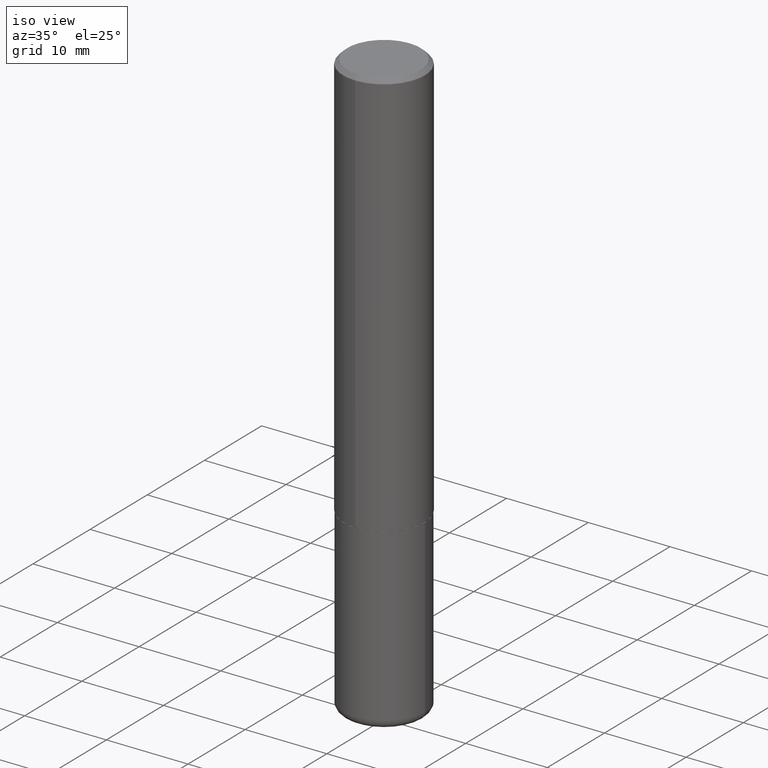
[diagram: clean part render]
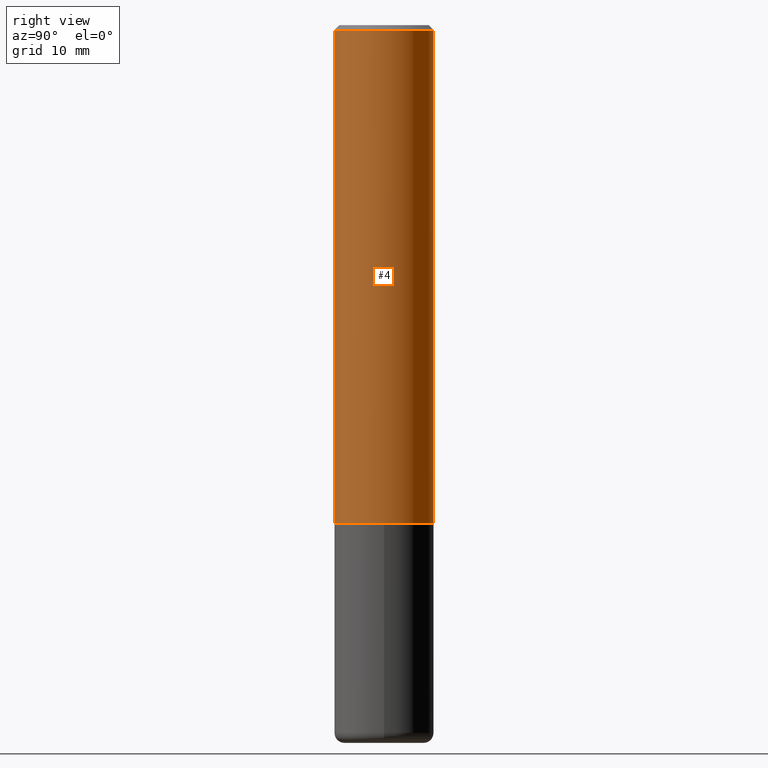
[diagram: tour spotlight — one face highlighted and labeled with its STEP entity id]
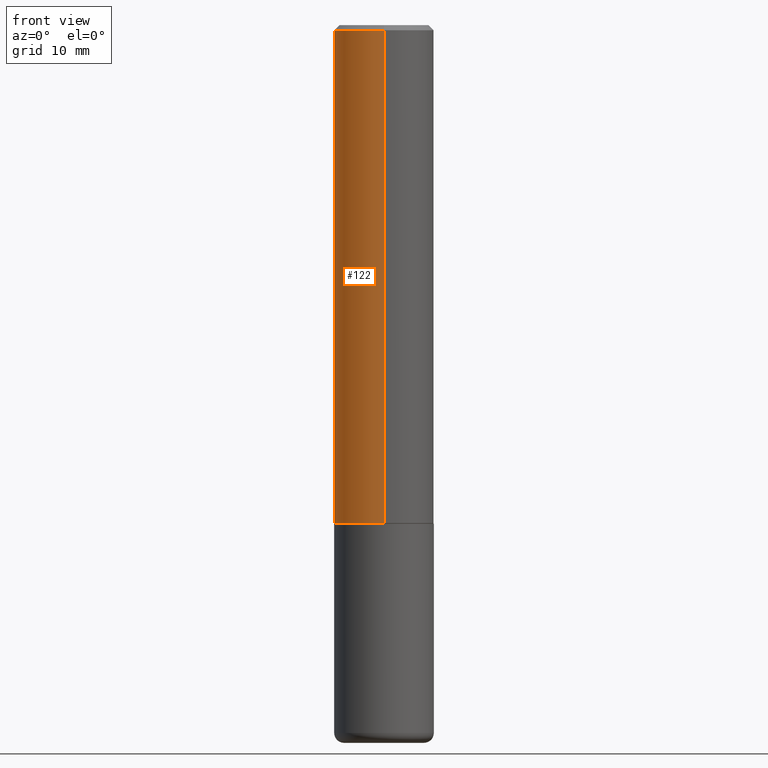
[diagram: tour spotlight — one face highlighted and labeled with its STEP entity id]
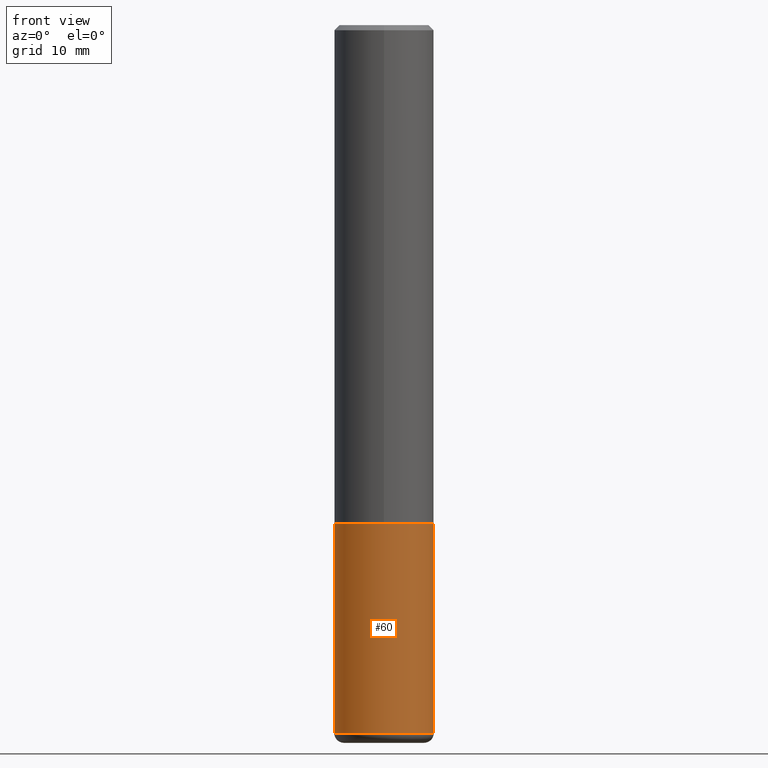
[diagram: tour spotlight — one face highlighted and labeled with its STEP entity id]
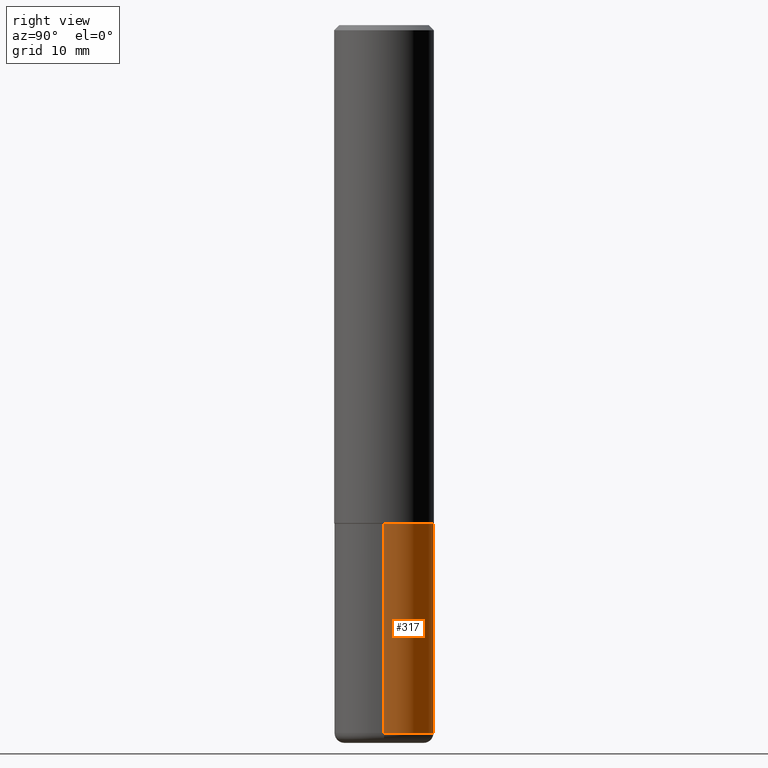
[diagram: tour spotlight — one face highlighted and labeled with its STEP entity id]
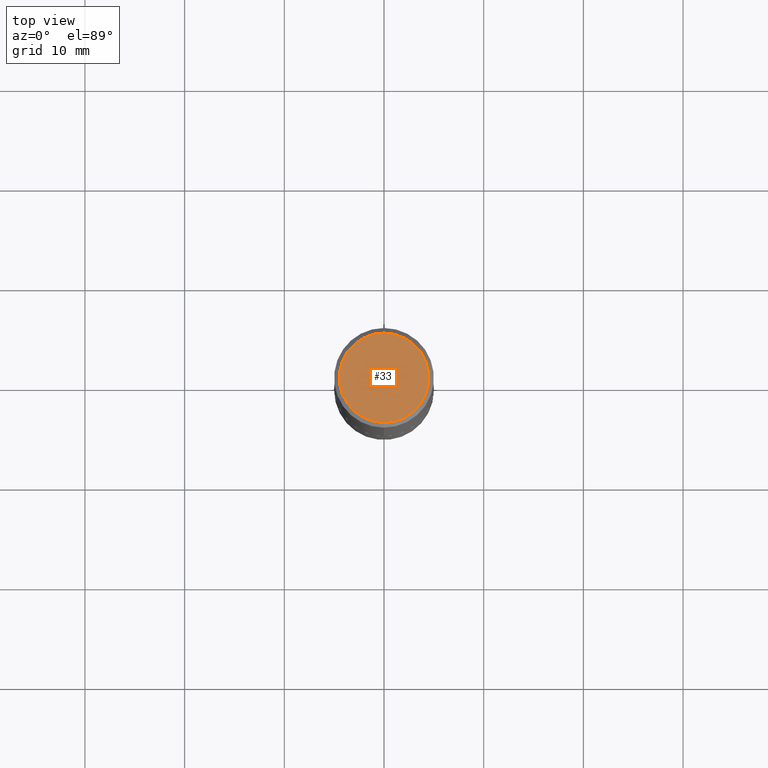
[diagram: tour spotlight — one face highlighted and labeled with its STEP entity id]
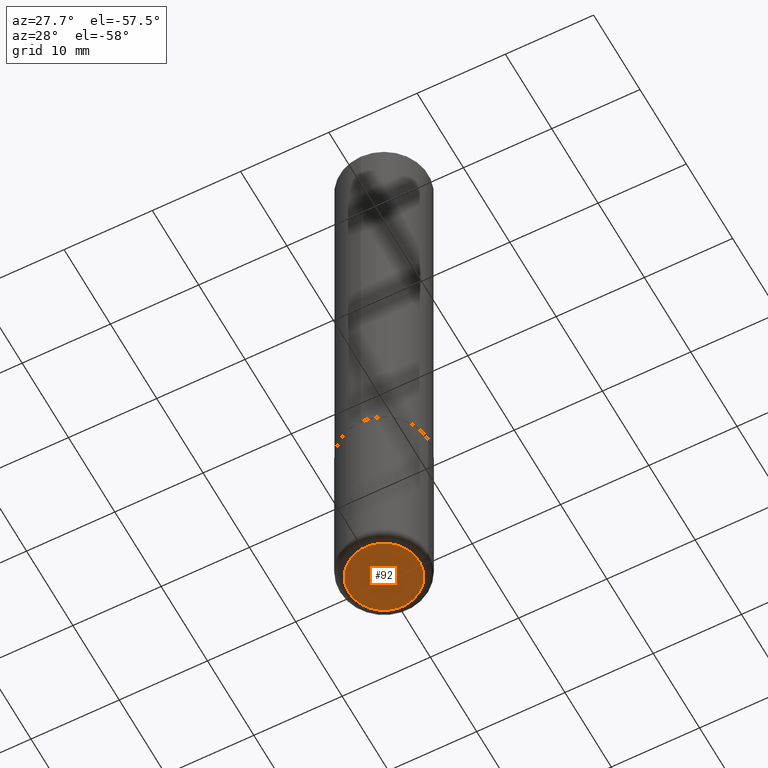
[diagram: tour spotlight — one face highlighted and labeled with its STEP entity id]
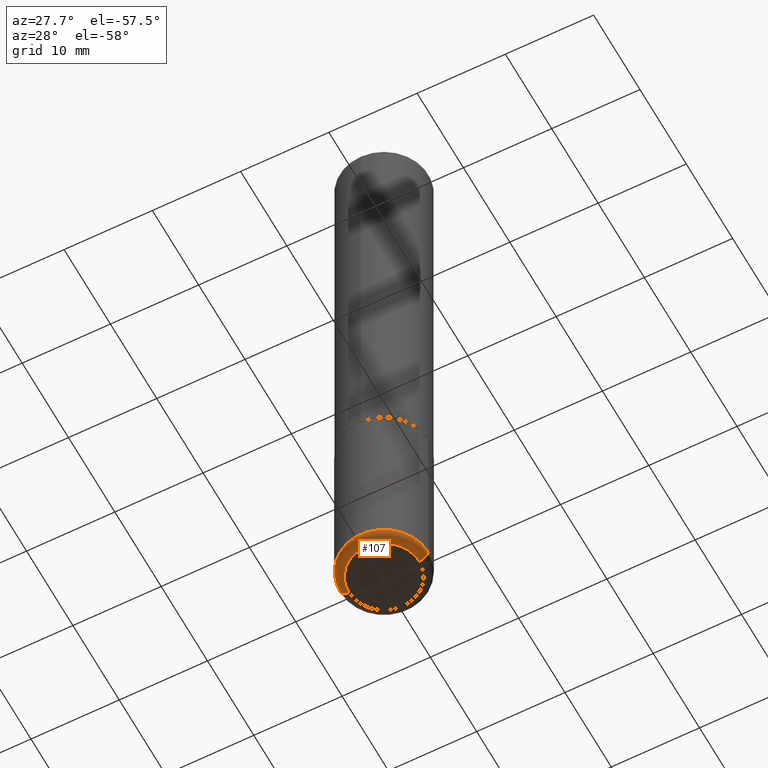
[diagram: tour spotlight — one face highlighted and labeled with its STEP entity id]
A machine part: a face-by-face anatomy tour. The part has 14 B-rep faces; the first image is the clean iso view, then the 7 largest visible faces are spotlighted one at a time (largest first), each with its STEP entity span.

Face 1 — right view, entity #4. In plain terms, the highlighted cylindrical surface (partial cylindrical patch) has radius 5 mm, axis along (-0, 0, 1).
Definition (entity closure, byte-faithful):
#3 = CARTESIAN_POINT ( 'NONE',  ( 1.374596203102542003E-15, 0.1968499999999999417, -0.02000000000000072900 ) ) ;
#4 = ADVANCED_FACE ( 'NONE', ( #323 ), #302, .T. ) ;
#11 = DIRECTION ( 'NONE',  ( -2.445768211810956331E-29, 3.491052572945861944E-15, 1.000000000000000000 ) ) ;
#14 = VERTEX_POINT ( 'NONE', #326 ) ;
#27 = CIRCLE ( 'NONE', #363, 0.1968500000000002470 ) ;
#28 = DIRECTION ( 'NONE',  ( -2.445768211810956331E-29, 3.491052572945861944E-15, 1.000000000000000000 ) ) ;
#30 = VERTEX_POINT ( 'NONE', #3 ) ;
#57 = LINE ( 'NONE', #193, #389 ) ;
#66 = EDGE_CURVE ( 'NONE', #14, #131, #27, .T. ) ;
#93 = CARTESIAN_POINT ( 'NONE',  ( 1.398703375343782834E-15, 0.1968499999999934191, -1.967500000000000471 ) ) ;
#105 = ORIENTED_EDGE ( 'NONE', *, *, #206, .F. ) ;
#110 = AXIS2_PLACEMENT_3D ( 'NONE', #306, #28, #260 ) ;
#118 = EDGE_CURVE ( 'NONE', #14, #154, #57, .T. ) ;
#129 = ORIENTED_EDGE ( 'NONE', *, *, #354, .T. ) ;
#131 = VERTEX_POINT ( 'NONE', #93 ) ;
#154 = VERTEX_POINT ( 'NONE', #190 ) ;
#166 = DIRECTION ( 'NONE',  ( -2.445768211810956331E-29, 3.491052572945861944E-15, 1.000000000000000000 ) ) ;
#175 = DIRECTION ( 'NONE',  ( -2.445768211810956331E-29, 3.491052572945861549E-15, 1.000000000000000000 ) ) ;
#188 = ORIENTED_EDGE ( 'NONE', *, *, #118, .F. ) ;
#190 = CARTESIAN_POINT ( 'NONE',  ( -1.350489030861325429E-15, -0.1968500000000000805, -0.01999999999999935510 ) ) ;
#193 = CARTESIAN_POINT ( 'NONE',  ( -1.374596203102542200E-15, -0.1968500000000001082, 6.872136989843933563E-16 ) ) ;
#196 = AXIS2_PLACEMENT_3D ( 'NONE', #349, #166, #295 ) ;
#206 = EDGE_CURVE ( 'NONE', #154, #30, #256, .T. ) ;
#217 = DIRECTION ( 'NONE',  ( -6.982962677686265922E-15, -1.000000000000000000, 4.163344669033670112E-15 ) ) ;
#223 = DIRECTION ( 'NONE',  ( -2.445768211810956331E-29, 3.491052572945861549E-15, 1.000000000000000000 ) ) ;
#226 = LINE ( 'NONE', #330, #367 ) ;
#241 = ORIENTED_EDGE ( 'NONE', *, *, #66, .T. ) ;
#256 = CIRCLE ( 'NONE', #110, 0.1968500000000000250 ) ;
#260 = DIRECTION ( 'NONE',  ( -6.982962677686265133E-15, -1.000000000000000000, 3.491137977679279424E-15 ) ) ;
#264 = CARTESIAN_POINT ( 'NONE',  ( 4.812048956738055591E-29, -6.868645937270982279E-15, -1.967499999999999805 ) ) ;
#295 = DIRECTION ( 'NONE',  ( -6.982962677686265922E-15, -1.000000000000000000, 3.491052572945862338E-15 ) ) ;
#302 = CYLINDRICAL_SURFACE ( 'NONE', #196, 0.1968500000000001082 ) ;
#306 = CARTESIAN_POINT ( 'NONE',  ( 4.891536423621923102E-31, -6.982105145891738778E-17, -0.02000000000000004205 ) ) ;
#323 = FACE_OUTER_BOUND ( 'NONE', #335, .T. ) ;
#326 = CARTESIAN_POINT ( 'NONE',  ( -1.374596203102495065E-15, -0.1968500000000071026, -1.967499999999998916 ) ) ;
#330 = CARTESIAN_POINT ( 'NONE',  ( 1.398703375343757788E-15, 0.1968500000000001082, -6.872136989843933563E-16 ) ) ;
#335 = EDGE_LOOP ( 'NONE', ( #241, #129, #105, #188 ) ) ;
#349 = CARTESIAN_POINT ( 'NONE',  ( 0.000000000000000000, 0.000000000000000000, 0.000000000000000000 ) ) ;
#354 = EDGE_CURVE ( 'NONE', #131, #30, #226, .T. ) ;
#363 = AXIS2_PLACEMENT_3D ( 'NONE', #264, #11, #217 ) ;
#367 = VECTOR ( 'NONE', #175, 39.37007874015748143 ) ;
#389 = VECTOR ( 'NONE', #223, 39.37007874015748143 ) ;

Face 2 — front view, entity #122. In plain terms, the highlighted cylindrical surface (partial cylindrical patch) has radius 5 mm, axis along (-0, 0, 1).
Definition (entity closure, byte-faithful):
#1 = CIRCLE ( 'NONE', #143, 0.1968500000000000250 ) ;
#3 = CARTESIAN_POINT ( 'NONE',  ( 1.374596203102542003E-15, 0.1968499999999999417, -0.02000000000000072900 ) ) ;
#14 = VERTEX_POINT ( 'NONE', #326 ) ;
#17 = DIRECTION ( 'NONE',  ( -2.445768211810956331E-29, 3.491052572945861944E-15, 1.000000000000000000 ) ) ;
#23 = ORIENTED_EDGE ( 'NONE', *, *, #336, .F. ) ;
#30 = VERTEX_POINT ( 'NONE', #3 ) ;
#34 = ORIENTED_EDGE ( 'NONE', *, *, #354, .F. ) ;
#53 = CARTESIAN_POINT ( 'NONE',  ( 0.000000000000000000, 0.000000000000000000, 0.000000000000000000 ) ) ;
#57 = LINE ( 'NONE', #193, #389 ) ;
#72 = DIRECTION ( 'NONE',  ( -6.982962677686265922E-15, -1.000000000000000000, 4.163344669033670112E-15 ) ) ;
#77 = DIRECTION ( 'NONE',  ( -2.445768211810956331E-29, 3.491052572945861944E-15, 1.000000000000000000 ) ) ;
#93 = CARTESIAN_POINT ( 'NONE',  ( 1.398703375343782834E-15, 0.1968499999999934191, -1.967500000000000471 ) ) ;
#116 = DIRECTION ( 'NONE',  ( -6.982962677686265922E-15, -1.000000000000000000, 3.491052572945862338E-15 ) ) ;
#118 = EDGE_CURVE ( 'NONE', #14, #154, #57, .T. ) ;
#122 = ADVANCED_FACE ( 'NONE', ( #370 ), #147, .T. ) ;
#131 = VERTEX_POINT ( 'NONE', #93 ) ;
#143 = AXIS2_PLACEMENT_3D ( 'NONE', #178, #77, #172 ) ;
#147 = CYLINDRICAL_SURFACE ( 'NONE', #216, 0.1968500000000001082 ) ;
#154 = VERTEX_POINT ( 'NONE', #190 ) ;
#172 = DIRECTION ( 'NONE',  ( -6.982962677686265133E-15, -1.000000000000000000, 3.491137977679279424E-15 ) ) ;
#175 = DIRECTION ( 'NONE',  ( -2.445768211810956331E-29, 3.491052572945861549E-15, 1.000000000000000000 ) ) ;
#178 = CARTESIAN_POINT ( 'NONE',  ( 4.891536423621923102E-31, -6.982105145891738778E-17, -0.02000000000000004205 ) ) ;
#189 = AXIS2_PLACEMENT_3D ( 'NONE', #320, #353, #72 ) ;
#190 = CARTESIAN_POINT ( 'NONE',  ( -1.350489030861325429E-15, -0.1968500000000000805, -0.01999999999999935510 ) ) ;
#193 = CARTESIAN_POINT ( 'NONE',  ( -1.374596203102542200E-15, -0.1968500000000001082, 6.872136989843933563E-16 ) ) ;
#216 = AXIS2_PLACEMENT_3D ( 'NONE', #53, #17, #116 ) ;
#223 = DIRECTION ( 'NONE',  ( -2.445768211810956331E-29, 3.491052572945861549E-15, 1.000000000000000000 ) ) ;
#226 = LINE ( 'NONE', #330, #367 ) ;
#235 = ORIENTED_EDGE ( 'NONE', *, *, #118, .T. ) ;
#263 = CIRCLE ( 'NONE', #189, 0.1968500000000002470 ) ;
#280 = EDGE_CURVE ( 'NONE', #131, #14, #263, .T. ) ;
#281 = EDGE_LOOP ( 'NONE', ( #34, #407, #235, #23 ) ) ;
#320 = CARTESIAN_POINT ( 'NONE',  ( 4.812048956738055591E-29, -6.868645937270982279E-15, -1.967499999999999805 ) ) ;
#326 = CARTESIAN_POINT ( 'NONE',  ( -1.374596203102495065E-15, -0.1968500000000071026, -1.967499999999998916 ) ) ;
#330 = CARTESIAN_POINT ( 'NONE',  ( 1.398703375343757788E-15, 0.1968500000000001082, -6.872136989843933563E-16 ) ) ;
#336 = EDGE_CURVE ( 'NONE', #30, #154, #1, .T. ) ;
#353 = DIRECTION ( 'NONE',  ( -2.445768211810956331E-29, 3.491052572945861944E-15, 1.000000000000000000 ) ) ;
#354 = EDGE_CURVE ( 'NONE', #131, #30, #226, .T. ) ;
#367 = VECTOR ( 'NONE', #175, 39.37007874015748143 ) ;
#370 = FACE_OUTER_BOUND ( 'NONE', #281, .T. ) ;
#389 = VECTOR ( 'NONE', #223, 39.37007874015748143 ) ;
#407 = ORIENTED_EDGE ( 'NONE', *, *, #280, .T. ) ;

Face 3 — front view, entity #60. In plain terms, the highlighted cylindrical surface (partial cylindrical patch) has radius 5 mm, axis along (-0, 0, 1).
Definition (entity closure, byte-faithful):
#2 = CARTESIAN_POINT ( 'NONE',  ( -0.1968500000000000250, 1.398703375343757393E-15, -9.682923725166783677E-30 ) ) ;
#15 = EDGE_CURVE ( 'NONE', #412, #176, #71, .T. ) ;
#36 = DIRECTION ( 'NONE',  ( -2.445468806185136877E-29, 3.491481338843145188E-15, 1.000000000000000000 ) ) ;
#37 = CARTESIAN_POINT ( 'NONE',  ( 6.835574407048694043E-29, -9.759388638334360093E-15, -2.795199999999999907 ) ) ;
#40 = CARTESIAN_POINT ( 'NONE',  ( 0.1968500000000000527, -1.113398484143690170E-14, -2.795199999999999907 ) ) ;
#60 = ADVANCED_FACE ( 'NONE', ( #100 ), #228, .T. ) ;
#64 = CARTESIAN_POINT ( 'NONE',  ( 0.000000000000000000, 0.000000000000000000, 0.000000000000000000 ) ) ;
#71 = LINE ( 'NONE', #2, #390 ) ;
#87 = CIRCLE ( 'NONE', #339, 0.1968500000000000250 ) ;
#100 = FACE_OUTER_BOUND ( 'NONE', #387, .T. ) ;
#102 = EDGE_CURVE ( 'NONE', #245, #224, #361, .T. ) ;
#104 = DIRECTION ( 'NONE',  ( 1.000000000000000000, -6.982962677686267499E-15, 0.000000000000000000 ) ) ;
#109 = DIRECTION ( 'NONE',  ( 1.000000000000000000, -6.982962677686267499E-15, 0.000000000000000000 ) ) ;
#114 = ORIENTED_EDGE ( 'NONE', *, *, #102, .T. ) ;
#156 = ORIENTED_EDGE ( 'NONE', *, *, #192, .F. ) ;
#158 = AXIS2_PLACEMENT_3D ( 'NONE', #64, #163, #292 ) ;
#163 = DIRECTION ( 'NONE',  ( -2.445468806185136597E-29, 3.491481338843145583E-15, 1.000000000000000000 ) ) ;
#176 = VERTEX_POINT ( 'NONE', #315 ) ;
#179 = CARTESIAN_POINT ( 'NONE',  ( 0.1968500000000000250, -1.374596203102541608E-15, 9.598753983154300858E-30 ) ) ;
#192 = EDGE_CURVE ( 'NONE', #176, #224, #87, .T. ) ;
#195 = CARTESIAN_POINT ( 'NONE',  ( 4.813905344975441835E-29, -6.872981015512731707E-15, -1.968500000000000139 ) ) ;
#224 = VERTEX_POINT ( 'NONE', #299 ) ;
#228 = CYLINDRICAL_SURFACE ( 'NONE', #158, 0.1968500000000000250 ) ;
#245 = VERTEX_POINT ( 'NONE', #40 ) ;
#249 = ORIENTED_EDGE ( 'NONE', *, *, #15, .F. ) ;
#265 = EDGE_CURVE ( 'NONE', #412, #245, #362, .T. ) ;
#275 = CARTESIAN_POINT ( 'NONE',  ( -0.1968500000000000527, -8.360685262990601516E-15, -2.795199999999999907 ) ) ;
#282 = AXIS2_PLACEMENT_3D ( 'NONE', #37, #393, #104 ) ;
#292 = DIRECTION ( 'NONE',  ( 1.000000000000000000, -6.982962677686265922E-15, 4.876176775795935793E-29 ) ) ;
#299 = CARTESIAN_POINT ( 'NONE',  ( 0.1968500000000000250, -8.247577218615273316E-15, -1.968500000000000139 ) ) ;
#307 = DIRECTION ( 'NONE',  ( -2.445468806185136877E-29, 3.491481338843145188E-15, 1.000000000000000000 ) ) ;
#315 = CARTESIAN_POINT ( 'NONE',  ( -0.1968500000000000250, -6.917481451579789690E-15, -1.968500000000000139 ) ) ;
#327 = DIRECTION ( 'NONE',  ( -2.445468806185136597E-29, 3.491481338843145583E-15, 1.000000000000000000 ) ) ;
#339 = AXIS2_PLACEMENT_3D ( 'NONE', #195, #327, #109 ) ;
#361 = LINE ( 'NONE', #179, #375 ) ;
#362 = CIRCLE ( 'NONE', #282, 0.1968500000000000250 ) ;
#375 = VECTOR ( 'NONE', #307, 39.37007874015748143 ) ;
#386 = ORIENTED_EDGE ( 'NONE', *, *, #265, .T. ) ;
#387 = EDGE_LOOP ( 'NONE', ( #249, #386, #114, #156 ) ) ;
#390 = VECTOR ( 'NONE', #36, 39.37007874015748143 ) ;
#393 = DIRECTION ( 'NONE',  ( -2.445468806185136597E-29, 3.491481338843145583E-15, 1.000000000000000000 ) ) ;
#412 = VERTEX_POINT ( 'NONE', #275 ) ;

Face 4 — right view, entity #317. In plain terms, the highlighted cylindrical surface (partial cylindrical patch) has radius 5 mm, axis along (-0, 0, 1).
Definition (entity closure, byte-faithful):
#2 = CARTESIAN_POINT ( 'NONE',  ( -0.1968500000000000250, 1.398703375343757393E-15, -9.682923725166783677E-30 ) ) ;
#7 = DIRECTION ( 'NONE',  ( -2.445468806185136597E-29, 3.491481338843145583E-15, 1.000000000000000000 ) ) ;
#15 = EDGE_CURVE ( 'NONE', #412, #176, #71, .T. ) ;
#18 = ORIENTED_EDGE ( 'NONE', *, *, #102, .F. ) ;
#36 = DIRECTION ( 'NONE',  ( -2.445468806185136877E-29, 3.491481338843145188E-15, 1.000000000000000000 ) ) ;
#40 = CARTESIAN_POINT ( 'NONE',  ( 0.1968500000000000527, -1.113398484143690170E-14, -2.795199999999999907 ) ) ;
#68 = AXIS2_PLACEMENT_3D ( 'NONE', #238, #279, #247 ) ;
#71 = LINE ( 'NONE', #2, #390 ) ;
#74 = DIRECTION ( 'NONE',  ( 1.000000000000000000, -6.982962677686267499E-15, 0.000000000000000000 ) ) ;
#76 = EDGE_CURVE ( 'NONE', #245, #412, #309, .T. ) ;
#101 = AXIS2_PLACEMENT_3D ( 'NONE', #234, #356, #74 ) ;
#102 = EDGE_CURVE ( 'NONE', #245, #224, #361, .T. ) ;
#115 = CIRCLE ( 'NONE', #101, 0.1968500000000000250 ) ;
#124 = EDGE_LOOP ( 'NONE', ( #343, #287, #409, #18 ) ) ;
#176 = VERTEX_POINT ( 'NONE', #315 ) ;
#179 = CARTESIAN_POINT ( 'NONE',  ( 0.1968500000000000250, -1.374596203102541608E-15, 9.598753983154300858E-30 ) ) ;
#212 = DIRECTION ( 'NONE',  ( 1.000000000000000000, -6.982962677686265922E-15, 4.876176775795935793E-29 ) ) ;
#224 = VERTEX_POINT ( 'NONE', #299 ) ;
#234 = CARTESIAN_POINT ( 'NONE',  ( 4.813905344975441835E-29, -6.872981015512731707E-15, -1.968500000000000139 ) ) ;
#238 = CARTESIAN_POINT ( 'NONE',  ( 6.835574407048694043E-29, -9.759388638334360093E-15, -2.795199999999999907 ) ) ;
#245 = VERTEX_POINT ( 'NONE', #40 ) ;
#247 = DIRECTION ( 'NONE',  ( 1.000000000000000000, -6.982962677686267499E-15, 0.000000000000000000 ) ) ;
#272 = CARTESIAN_POINT ( 'NONE',  ( 0.000000000000000000, 0.000000000000000000, 0.000000000000000000 ) ) ;
#275 = CARTESIAN_POINT ( 'NONE',  ( -0.1968500000000000527, -8.360685262990601516E-15, -2.795199999999999907 ) ) ;
#279 = DIRECTION ( 'NONE',  ( -2.445468806185136597E-29, 3.491481338843145583E-15, 1.000000000000000000 ) ) ;
#287 = ORIENTED_EDGE ( 'NONE', *, *, #15, .T. ) ;
#299 = CARTESIAN_POINT ( 'NONE',  ( 0.1968500000000000250, -8.247577218615273316E-15, -1.968500000000000139 ) ) ;
#307 = DIRECTION ( 'NONE',  ( -2.445468806185136877E-29, 3.491481338843145188E-15, 1.000000000000000000 ) ) ;
#309 = CIRCLE ( 'NONE', #68, 0.1968500000000000250 ) ;
#315 = CARTESIAN_POINT ( 'NONE',  ( -0.1968500000000000250, -6.917481451579789690E-15, -1.968500000000000139 ) ) ;
#317 = ADVANCED_FACE ( 'NONE', ( #411 ), #359, .T. ) ;
#319 = AXIS2_PLACEMENT_3D ( 'NONE', #272, #7, #212 ) ;
#343 = ORIENTED_EDGE ( 'NONE', *, *, #76, .T. ) ;
#356 = DIRECTION ( 'NONE',  ( -2.445468806185136597E-29, 3.491481338843145583E-15, 1.000000000000000000 ) ) ;
#359 = CYLINDRICAL_SURFACE ( 'NONE', #319, 0.1968500000000000250 ) ;
#361 = LINE ( 'NONE', #179, #375 ) ;
#375 = VECTOR ( 'NONE', #307, 39.37007874015748143 ) ;
#390 = VECTOR ( 'NONE', #36, 39.37007874015748143 ) ;
#409 = ORIENTED_EDGE ( 'NONE', *, *, #416, .F. ) ;
#411 = FACE_OUTER_BOUND ( 'NONE', #124, .T. ) ;
#412 = VERTEX_POINT ( 'NONE', #275 ) ;
#416 = EDGE_CURVE ( 'NONE', #224, #176, #115, .T. ) ;

Face 5 — top view, entity #33. In plain terms, the highlighted planar face has unit normal (0, -0, -1).
Definition (entity closure, byte-faithful):
#33 = ADVANCED_FACE ( 'NONE', ( #130 ), #352, .F. ) ;
#38 = CARTESIAN_POINT ( 'NONE',  ( 1.234936949548815998E-15, 0.1768499999999999794, -5.982222549444910867E-16 ) ) ;
#41 = AXIS2_PLACEMENT_3D ( 'NONE', #38, #267, #170 ) ;
#47 = EDGE_LOOP ( 'NONE', ( #117, #290 ) ) ;
#52 = EDGE_CURVE ( 'NONE', #67, #98, #329, .T. ) ;
#54 = CIRCLE ( 'NONE', #332, 0.1768499999999999794 ) ;
#67 = VERTEX_POINT ( 'NONE', #184 ) ;
#69 = DIRECTION ( 'NONE',  ( -6.982962677686265922E-15, -1.000000000000000000, 3.491052572945862338E-15 ) ) ;
#98 = VERTEX_POINT ( 'NONE', #357 ) ;
#117 = ORIENTED_EDGE ( 'NONE', *, *, #52, .T. ) ;
#130 = FACE_OUTER_BOUND ( 'NONE', #47, .T. ) ;
#170 = DIRECTION ( 'NONE',  ( 6.982962677686265922E-15, 1.000000000000000000, -3.491052572945861549E-15 ) ) ;
#184 = CARTESIAN_POINT ( 'NONE',  ( 1.304766576325679099E-15, 0.1768499999999999794, -5.790518623635066240E-16 ) ) ;
#208 = CARTESIAN_POINT ( 'NONE',  ( -9.377267356501713356E-46, 1.338496966884566499E-31, 3.834078516196907338E-17 ) ) ;
#242 = AXIS2_PLACEMENT_3D ( 'NONE', #417, #346, #261 ) ;
#261 = DIRECTION ( 'NONE',  ( -6.982962677686265922E-15, -1.000000000000000000, 3.491052572945862338E-15 ) ) ;
#267 = DIRECTION ( 'NONE',  ( 2.445768211810956051E-29, -3.491052572945861549E-15, -1.000000000000000000 ) ) ;
#269 = DIRECTION ( 'NONE',  ( -2.445768211810956331E-29, 3.491052572945861944E-15, 1.000000000000000000 ) ) ;
#290 = ORIENTED_EDGE ( 'NONE', *, *, #369, .T. ) ;
#329 = CIRCLE ( 'NONE', #242, 0.1768499999999999794 ) ;
#332 = AXIS2_PLACEMENT_3D ( 'NONE', #208, #269, #69 ) ;
#346 = DIRECTION ( 'NONE',  ( -2.445768211810956331E-29, 3.491052572945861944E-15, 1.000000000000000000 ) ) ;
#352 = PLANE ( 'NONE',  #41 ) ;
#357 = CARTESIAN_POINT ( 'NONE',  ( -1.281884050883610492E-15, -0.1768499999999999794, 6.557334326874447708E-16 ) ) ;
#369 = EDGE_CURVE ( 'NONE', #98, #67, #54, .T. ) ;
#417 = CARTESIAN_POINT ( 'NONE',  ( -9.377267356501713356E-46, 1.338496966884566499E-31, 3.834078516196907338E-17 ) ) ;

Face 6 — auxiliary view, entity #92. In plain terms, the highlighted planar face has unit normal (0, -0, -1).
Definition (entity closure, byte-faithful):
#5 = CARTESIAN_POINT ( 'NONE',  ( 0.1574500000000000066, -1.099642047668648249E-14, -2.834600000000000009 ) ) ;
#12 = CARTESIAN_POINT ( 'NONE',  ( 6.931925878012387517E-29, -9.896953003084780885E-15, -2.834600000000000009 ) ) ;
#46 = PLANE ( 'NONE',  #211 ) ;
#56 = DIRECTION ( 'NONE',  ( -2.445468806185136597E-29, 3.491481338843145583E-15, 1.000000000000000000 ) ) ;
#62 = CIRCLE ( 'NONE', #134, 0.1574500000000000066 ) ;
#92 = ADVANCED_FACE ( 'NONE', ( #137 ), #46, .T. ) ;
#96 = AXIS2_PLACEMENT_3D ( 'NONE', #221, #56, #187 ) ;
#120 = EDGE_LOOP ( 'NONE', ( #266, #209 ) ) ;
#134 = AXIS2_PLACEMENT_3D ( 'NONE', #12, #391, #141 ) ;
#137 = FACE_OUTER_BOUND ( 'NONE', #120, .T. ) ;
#141 = DIRECTION ( 'NONE',  ( 1.000000000000000000, -6.982962677686265922E-15, 0.000000000000000000 ) ) ;
#171 = EDGE_CURVE ( 'NONE', #284, #413, #233, .T. ) ;
#187 = DIRECTION ( 'NONE',  ( 1.000000000000000000, -6.982962677686265922E-15, 0.000000000000000000 ) ) ;
#209 = ORIENTED_EDGE ( 'NONE', *, *, #402, .F. ) ;
#211 = AXIS2_PLACEMENT_3D ( 'NONE', #273, #392, #214 ) ;
#214 = DIRECTION ( 'NONE',  ( -1.000000000000000000, 6.982962677686265922E-15, -4.876176775795935793E-29 ) ) ;
#221 = CARTESIAN_POINT ( 'NONE',  ( 6.931925878012387517E-29, -9.896953003084780885E-15, -2.834600000000000009 ) ) ;
#233 = CIRCLE ( 'NONE', #96, 0.1574500000000000066 ) ;
#266 = ORIENTED_EDGE ( 'NONE', *, *, #171, .F. ) ;
#273 = CARTESIAN_POINT ( 'NONE',  ( 6.931925878012387517E-29, -9.896953003084780885E-15, -2.834600000000000009 ) ) ;
#284 = VERTEX_POINT ( 'NONE', #5 ) ;
#391 = DIRECTION ( 'NONE',  ( -2.445468806185136597E-29, 3.491481338843145583E-15, 1.000000000000000000 ) ) ;
#392 = DIRECTION ( 'NONE',  ( 2.438088387897960049E-29, -3.491481338843145188E-15, -1.000000000000000000 ) ) ;
#394 = CARTESIAN_POINT ( 'NONE',  ( -0.1574500000000000066, -8.569444364310552799E-15, -2.834600000000000009 ) ) ;
#402 = EDGE_CURVE ( 'NONE', #413, #284, #62, .T. ) ;
#413 = VERTEX_POINT ( 'NONE', #394 ) ;

Face 7 — auxiliary view, entity #107. In plain terms, the highlighted toroidal blend (fillet) surface has major radius 3.9992 mm and minor (blend) radius 1.0008 mm.
Definition (entity closure, byte-faithful):
#5 = CARTESIAN_POINT ( 'NONE',  ( 0.1574500000000000066, -1.099642047668648249E-14, -2.834600000000000009 ) ) ;
#10 = EDGE_CURVE ( 'NONE', #413, #412, #360, .T. ) ;
#12 = CARTESIAN_POINT ( 'NONE',  ( 6.931925878012387517E-29, -9.896953003084780885E-15, -2.834600000000000009 ) ) ;
#13 = FACE_OUTER_BOUND ( 'NONE', #399, .T. ) ;
#32 = AXIS2_PLACEMENT_3D ( 'NONE', #108, #240, #75 ) ;
#37 = CARTESIAN_POINT ( 'NONE',  ( 6.835574407048694043E-29, -9.759388638334360093E-15, -2.795199999999999907 ) ) ;
#40 = CARTESIAN_POINT ( 'NONE',  ( 0.1968500000000000527, -1.113398484143690170E-14, -2.795199999999999907 ) ) ;
#43 = AXIS2_PLACEMENT_3D ( 'NONE', #207, #300, #203 ) ;
#49 = ORIENTED_EDGE ( 'NONE', *, *, #10, .F. ) ;
#61 = ORIENTED_EDGE ( 'NONE', *, *, #265, .F. ) ;
#62 = CIRCLE ( 'NONE', #134, 0.1574500000000000066 ) ;
#75 = DIRECTION ( 'NONE',  ( 1.000000000000000000, -6.982962677686267499E-15, 0.000000000000000000 ) ) ;
#97 = EDGE_CURVE ( 'NONE', #284, #245, #126, .T. ) ;
#104 = DIRECTION ( 'NONE',  ( 1.000000000000000000, -6.982962677686267499E-15, 0.000000000000000000 ) ) ;
#107 = ADVANCED_FACE ( 'NONE', ( #13 ), #220, .T. ) ;
#108 = CARTESIAN_POINT ( 'NONE',  ( 0.1574500000000000066, -1.085885611193606169E-14, -2.795199999999999907 ) ) ;
#126 = CIRCLE ( 'NONE', #32, 0.03940000000000005997 ) ;
#134 = AXIS2_PLACEMENT_3D ( 'NONE', #12, #391, #141 ) ;
#141 = DIRECTION ( 'NONE',  ( 1.000000000000000000, -6.982962677686265922E-15, 0.000000000000000000 ) ) ;
#155 = DIRECTION ( 'NONE',  ( 1.000000000000000000, -6.982962677686265922E-15, 4.883557194083112340E-29 ) ) ;
#203 = DIRECTION ( 'NONE',  ( -1.000000000000000000, 7.105427357601014480E-15, 0.000000000000000000 ) ) ;
#207 = CARTESIAN_POINT ( 'NONE',  ( -0.1574500000000000066, -8.640639100880081711E-15, -2.795199999999999907 ) ) ;
#220 = TOROIDAL_SURFACE ( 'NONE', #286, 0.1574500000000000066, 0.03940000000000005997 ) ;
#240 = DIRECTION ( 'NONE',  ( -6.982962677686266711E-15, -1.000000000000000000, 3.491481338843145583E-15 ) ) ;
#245 = VERTEX_POINT ( 'NONE', #40 ) ;
#248 = ORIENTED_EDGE ( 'NONE', *, *, #402, .T. ) ;
#265 = EDGE_CURVE ( 'NONE', #412, #245, #362, .T. ) ;
#275 = CARTESIAN_POINT ( 'NONE',  ( -0.1968500000000000527, -8.360685262990601516E-15, -2.795199999999999907 ) ) ;
#282 = AXIS2_PLACEMENT_3D ( 'NONE', #37, #393, #104 ) ;
#284 = VERTEX_POINT ( 'NONE', #5 ) ;
#286 = AXIS2_PLACEMENT_3D ( 'NONE', #395, #406, #155 ) ;
#300 = DIRECTION ( 'NONE',  ( 7.105427357601001859E-15, 1.000000000000000000, -3.491481338843145583E-15 ) ) ;
#313 = ORIENTED_EDGE ( 'NONE', *, *, #97, .T. ) ;
#360 = CIRCLE ( 'NONE', #43, 0.03940000000000005997 ) ;
#362 = CIRCLE ( 'NONE', #282, 0.1968500000000000250 ) ;
#391 = DIRECTION ( 'NONE',  ( -2.445468806185136597E-29, 3.491481338843145583E-15, 1.000000000000000000 ) ) ;
#393 = DIRECTION ( 'NONE',  ( -2.445468806185136597E-29, 3.491481338843145583E-15, 1.000000000000000000 ) ) ;
#394 = CARTESIAN_POINT ( 'NONE',  ( -0.1574500000000000066, -8.569444364310552799E-15, -2.834600000000000009 ) ) ;
#395 = CARTESIAN_POINT ( 'NONE',  ( 6.835574407048694043E-29, -9.759388638334360093E-15, -2.795199999999999907 ) ) ;
#399 = EDGE_LOOP ( 'NONE', ( #49, #248, #313, #61 ) ) ;
#402 = EDGE_CURVE ( 'NONE', #413, #284, #62, .T. ) ;
#406 = DIRECTION ( 'NONE',  ( -2.445468806185136597E-29, 3.491481338843145583E-15, 1.000000000000000000 ) ) ;
#412 = VERTEX_POINT ( 'NONE', #275 ) ;
#413 = VERTEX_POINT ( 'NONE', #394 ) ;